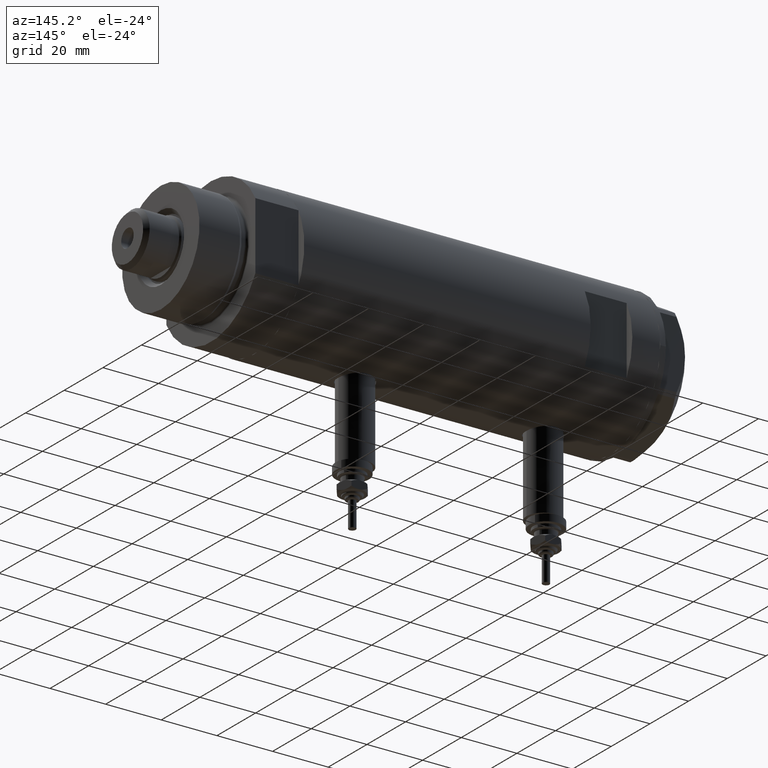
[diagram: clean part render]
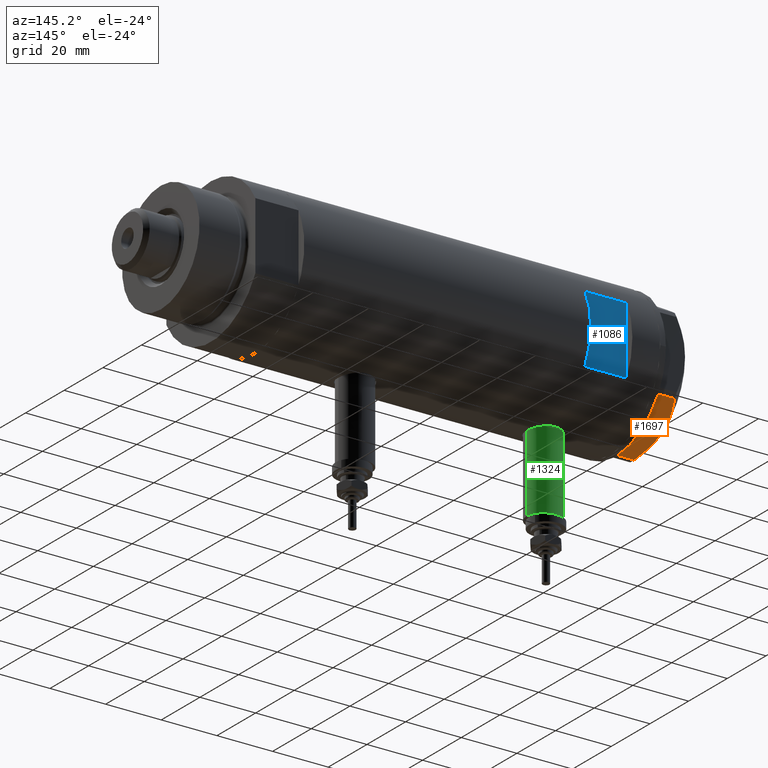
[diagram: same view with three faces highlighted in distinct colors, each labeled with its STEP entity id]
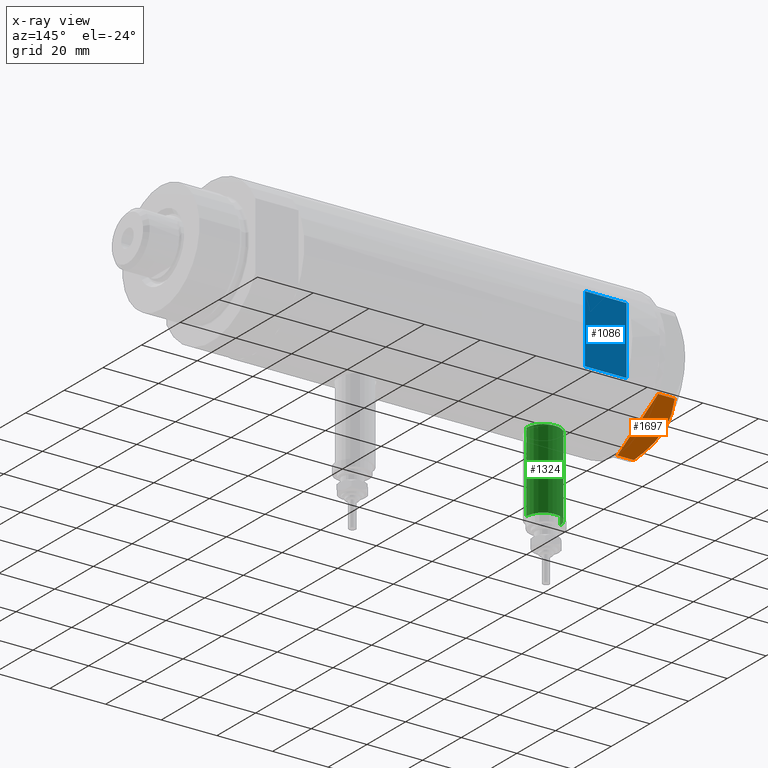
[diagram: x-ray of the same camera — body ghosted, the three highlighted faces saturated]
A machine part, auxiliary view with three faces highlighted in distinct colors.
The next image is the same camera in x-ray (body ghosted, the three faces saturated) — at least one of them is partly hidden behind the body in this view.
Their STEP definitions:

[orange] entity #1697 — the highlighted planar face has unit normal (0, -0.5, 0.866).
#93 = CARTESIAN_POINT ( 'NONE',  ( 22.03005154776138852, 13.83905619136154819, 5.983800287807532037 ) ) ;
#448 = DIRECTION ( 'NONE',  ( -0.8660254037844415942, 0.4999999999999949485, 0.000000000000000000 ) ) ;
#458 = CARTESIAN_POINT ( 'NONE',  ( 15.16323225988329959, 17.80361615569442790, 8.637313967156861949 ) ) ;
#459 = CARTESIAN_POINT ( 'NONE',  ( 22.99999999999981171, 13.27905619136164184, 0.000000000000000000 ) ) ;
#599 = ORIENTED_EDGE ( 'NONE', *, *, #1972, .T. ) ;
#874 = EDGE_CURVE ( 'NONE', #1770, #4079, #2374, .T. ) ;
#1021 = CARTESIAN_POINT ( 'NONE',  ( 18.67981377008996446, 15.77331687414937278, 7.629374868826049649 ) ) ;
#1106 = CARTESIAN_POINT ( 'NONE',  ( 0.9999999999999297229, 25.98076211353316722, 0.000000000000000000 ) ) ;
#1217 = ORIENTED_EDGE ( 'NONE', *, *, #1608, .T. ) ;
#1262 = ORIENTED_EDGE ( 'NONE', *, *, #2568, .T. ) ;
#1413 = CARTESIAN_POINT ( 'NONE',  ( 1.799196345396824492, 25.51934588838292228, 6.431317509509382191 ) ) ;
#1447 = VECTOR ( 'NONE', #1647, 1000.000000000000000 ) ;
#1463 = ORIENTED_EDGE ( 'NONE', *, *, #3302, .T. ) ;
#1483 = CARTESIAN_POINT ( 'NONE',  ( 13.34348161667005073, 18.85424967941157703, 8.907842277728345692 ) ) ;
#1501 = LINE ( 'NONE', #2521, #4923 ) ;
#1525 = CARTESIAN_POINT ( 'NONE',  ( 0.9699484522385767304, 25.99811238272274849, 5.983800287807627960 ) ) ;
#1608 = EDGE_CURVE ( 'NONE', #4596, #1933, #4842, .T. ) ;
#1647 = DIRECTION ( 'NONE',  ( 0.000000000000000000, 0.000000000000000000, 1.000000000000000000 ) ) ;
#1697 = ADVANCED_FACE ( 'NONE', ( #3997 ), #2008, .F. ) ;
#1770 = VERTEX_POINT ( 'NONE', #3474 ) ;
#1799 = CARTESIAN_POINT ( 'NONE',  ( 11.49999999999990408, 19.91858428704219364, 9.000000000000000000 ) ) ;
#1914 = DIRECTION ( 'NONE',  ( -0.8660254037844415942, 0.4999999999999949485, 0.000000000000000000 ) ) ;
#1933 = VERTEX_POINT ( 'NONE', #2229 ) ;
#1953 = ORIENTED_EDGE ( 'NONE', *, *, #4364, .F. ) ;
#1972 = EDGE_CURVE ( 'NONE', #1933, #5640, #4669, .T. ) ;
#2008 = PLANE ( 'NONE',  #2760 ) ;
#2042 = CARTESIAN_POINT ( 'NONE',  ( 13.80210138309697498, 18.58946543380931260, 8.852712638955710034 ) ) ;
#2062 = ORIENTED_EDGE ( 'NONE', *, *, #874, .T. ) ;
#2129 = EDGE_CURVE ( 'NONE', #2654, #2762, #3082, .T. ) ;
#2229 = CARTESIAN_POINT ( 'NONE',  ( 0.9699484522385816154, 25.99811238272274494, 0.000000000000000000 ) ) ;
#2374 = LINE ( 'NONE', #459, #3270 ) ;
#2521 = CARTESIAN_POINT ( 'NONE',  ( 22.99999999999981171, 13.27905619136164184, 0.000000000000000000 ) ) ;
#2568 = EDGE_CURVE ( 'NONE', #4079, #4596, #1501, .T. ) ;
#2627 = EDGE_LOOP ( 'NONE', ( #5172, #1463, #2062, #1262, #1217, #599, #1953 ) ) ;
#2654 = VERTEX_POINT ( 'NONE', #5017 ) ;
#2681 = B_SPLINE_CURVE_WITH_KNOTS ( 'NONE', 3,
 ( #1799, #3754, #3849, #5254, #2956, #3019, #5911, #6277, #1413, #1525 ),
 .UNSPECIFIED., .F., .F.,
 ( 4, 2, 2, 2, 4 ),
 ( 0.01376519981810293489, 0.01998941321701561136, 0.02154546656674377961, 0.02310151991647194786, 0.02621362661592828783 ),
 .UNSPECIFIED. ) ;
#2760 = AXIS2_PLACEMENT_3D ( 'NONE', #3965, #5889, #2930 ) ;
#2762 = VERTEX_POINT ( 'NONE', #5245 ) ;
#2827 = CARTESIAN_POINT ( 'NONE',  ( 22.03005154776124286, 13.83905619136163168, 9.000000000000000000 ) ) ;
#2930 = DIRECTION ( 'NONE',  ( 0.8660254037844415942, -0.4999999999999949485, 0.000000000000000000 ) ) ;
#2956 = CARTESIAN_POINT ( 'NONE',  ( 5.229981517798067081, 23.53858114556529912, 7.892128867758392730 ) ) ;
#3019 = CARTESIAN_POINT ( 'NONE',  ( 4.357207709416038632, 24.04247733877631532, 7.570552255229681116 ) ) ;
#3082 = B_SPLINE_CURVE_WITH_KNOTS ( 'NONE', 3,
 ( #93, #5955, #1021, #5830, #458, #2042, #1483, #4004, #5894, #5439 ),
 .UNSPECIFIED., .F., .F.,
 ( 4, 2, 2, 2, 4 ),
 ( 0.001228959670438493522, 0.007497079744270714746, 0.01063113978118682655, 0.01219816979964488159, 0.01376519981810293489 ),
 .UNSPECIFIED. ) ;
#3270 = VECTOR ( 'NONE', #4332, 999.9999999999998863 ) ;
#3302 = EDGE_CURVE ( 'NONE', #2654, #1770, #5723, .T. ) ;
#3474 = CARTESIAN_POINT ( 'NONE',  ( 22.03005154776124286, 13.83905619136163168, 0.000000000000000000 ) ) ;
#3754 = CARTESIAN_POINT ( 'NONE',  ( 9.678244919010086988, 20.97037507344920826, 9.000000000000001776 ) ) ;
#3849 = CARTESIAN_POINT ( 'NONE',  ( 7.884645426989626671, 22.00591022298560517, 8.707651728476925257 ) ) ;
#3965 = CARTESIAN_POINT ( 'NONE',  ( 22.99999999999981171, 13.27905619136164184, 9.000000000000000000 ) ) ;
#3997 = FACE_OUTER_BOUND ( 'NONE', #2627, .T. ) ;
#4004 = CARTESIAN_POINT ( 'NONE',  ( 12.41906678023027588, 19.38796083407295967, 8.981686407609410949 ) ) ;
#4079 = VERTEX_POINT ( 'NONE', #5925 ) ;
#4203 = CARTESIAN_POINT ( 'NONE',  ( 0.9699484522385767304, 25.99811238272274849, 5.983800287807627960 ) ) ;
#4332 = DIRECTION ( 'NONE',  ( -0.8660254037844415942, 0.4999999999999949485, 0.000000000000000000 ) ) ;
#4364 = EDGE_CURVE ( 'NONE', #2762, #5640, #2681, .T. ) ;
#4596 = VERTEX_POINT ( 'NONE', #1106 ) ;
#4669 = LINE ( 'NONE', #5045, #1447 ) ;
#4842 = LINE ( 'NONE', #5737, #4912 ) ;
#4912 = VECTOR ( 'NONE', #448, 999.9999999999998863 ) ;
#4923 = VECTOR ( 'NONE', #1914, 999.9999999999998863 ) ;
#5017 = CARTESIAN_POINT ( 'NONE',  ( 22.03005154776138852, 13.83905619136154819, 5.983800287807532037 ) ) ;
#5045 = CARTESIAN_POINT ( 'NONE',  ( 0.9699484522385816154, 25.99811238272274494, 9.000000000000000000 ) ) ;
#5172 = ORIENTED_EDGE ( 'NONE', *, *, #2129, .F. ) ;
#5245 = CARTESIAN_POINT ( 'NONE',  ( 11.49999999999990408, 19.91858428704219364, 9.000000000000000000 ) ) ;
#5254 = CARTESIAN_POINT ( 'NONE',  ( 5.671686373602799591, 23.28356272816407824, 8.040681765829278405 ) ) ;
#5439 = CARTESIAN_POINT ( 'NONE',  ( 11.49999999999990408, 19.91858428704219364, 9.000000000000000000 ) ) ;
#5640 = VERTEX_POINT ( 'NONE', #4203 ) ;
#5723 = LINE ( 'NONE', #2827, #6051 ) ;
#5737 = CARTESIAN_POINT ( 'NONE',  ( 22.99999999999981171, 13.27905619136164184, 0.000000000000000000 ) ) ;
#5830 = CARTESIAN_POINT ( 'NONE',  ( 16.05322244309623869, 17.28978008384030929, 8.426899937603700153 ) ) ;
#5889 = DIRECTION ( 'NONE',  ( -0.4999999999999949485, -0.8660254037844415942, 0.000000000000000000 ) ) ;
#5894 = CARTESIAN_POINT ( 'NONE',  ( 11.95865151389051917, 19.65378171203322566, 9.000000000000005329 ) ) ;
#5911 = CARTESIAN_POINT ( 'NONE',  ( 3.925137811030050994, 24.29193301091819635, 7.397272853991373687 ) ) ;
#5925 = CARTESIAN_POINT ( 'NONE',  ( 21.99999999999987210, 13.85640646055121827, 0.000000000000000000 ) ) ;
#5955 = CARTESIAN_POINT ( 'NONE',  ( 20.37350567916420019, 14.79546339452108050, 6.877782426143415506 ) ) ;
#6051 = VECTOR ( 'NONE', #6226, 1000.000000000000000 ) ;
#6226 = DIRECTION ( 'NONE',  ( 0.000000000000000000, 0.000000000000000000, -1.000000000000000000 ) ) ;
#6277 = CARTESIAN_POINT ( 'NONE',  ( 2.640413878806739945, 25.03366871902167290, 6.844201024438365089 ) ) ;

[blue] entity #1086 — the highlighted planar face has unit normal (0, -1, -0).
#94 = FACE_OUTER_BOUND ( 'NONE', #649, .T. ) ;
#371 = EDGE_CURVE ( 'NONE', #3092, #3557, #594, .T. ) ;
#557 = CARTESIAN_POINT ( 'NONE',  ( -12.12435565298214080, 23.00000000000000355, -63.95000000000000995 ) ) ;
#594 = LINE ( 'NONE', #3540, #1737 ) ;
#649 = EDGE_LOOP ( 'NONE', ( #3959, #3046, #4732, #1401 ) ) ;
#716 = VERTEX_POINT ( 'NONE', #3171 ) ;
#776 = DIRECTION ( 'NONE',  ( 0.000000000000000000, 0.000000000000000000, -1.000000000000000000 ) ) ;
#1063 = CARTESIAN_POINT ( 'NONE',  ( -26.00000000000000355, 23.00000000000000355, 53.94999999999999574 ) ) ;
#1086 = ADVANCED_FACE ( 'NONE', ( #94 ), #4042, .F. ) ;
#1162 = VECTOR ( 'NONE', #3401, 1000.000000000000000 ) ;
#1358 = EDGE_CURVE ( 'NONE', #716, #3557, #5899, .T. ) ;
#1401 = ORIENTED_EDGE ( 'NONE', *, *, #4133, .T. ) ;
#1470 = CARTESIAN_POINT ( 'NONE',  ( 12.12435565298214080, 23.00000000000000355, 53.94999999999999574 ) ) ;
#1737 = VECTOR ( 'NONE', #2641, 1000.000000000000000 ) ;
#2066 = VECTOR ( 'NONE', #5508, 1000.000000000000000 ) ;
#2114 = DIRECTION ( 'NONE',  ( 0.000000000000000000, -1.000000000000000000, -0.000000000000000000 ) ) ;
#2641 = DIRECTION ( 'NONE',  ( -0.000000000000000000, -0.000000000000000000, -1.000000000000000000 ) ) ;
#2885 = DIRECTION ( 'NONE',  ( 1.000000000000000000, -0.000000000000000000, -0.000000000000000000 ) ) ;
#2947 = LINE ( 'NONE', #557, #1162 ) ;
#3046 = ORIENTED_EDGE ( 'NONE', *, *, #1358, .F. ) ;
#3092 = VERTEX_POINT ( 'NONE', #1470 ) ;
#3143 = CARTESIAN_POINT ( 'NONE',  ( 12.12435565298213724, 23.00000000000000355, 38.94999999999999574 ) ) ;
#3171 = CARTESIAN_POINT ( 'NONE',  ( -12.12435565298214080, 23.00000000000000355, 38.94999999999999574 ) ) ;
#3401 = DIRECTION ( 'NONE',  ( 0.000000000000000000, 0.000000000000000000, 1.000000000000000000 ) ) ;
#3540 = CARTESIAN_POINT ( 'NONE',  ( 12.12435565298214080, 23.00000000000000355, -63.95000000000000995 ) ) ;
#3557 = VERTEX_POINT ( 'NONE', #3143 ) ;
#3850 = CARTESIAN_POINT ( 'NONE',  ( -12.12435565298214080, 23.00000000000000355, 53.94999999999999574 ) ) ;
#3959 = ORIENTED_EDGE ( 'NONE', *, *, #371, .T. ) ;
#4005 = CARTESIAN_POINT ( 'NONE',  ( -26.00000000000000355, 23.00000000000000355, 53.94999999999999574 ) ) ;
#4042 = PLANE ( 'NONE',  #4906 ) ;
#4133 = EDGE_CURVE ( 'NONE', #5908, #3092, #5443, .T. ) ;
#4393 = VECTOR ( 'NONE', #2885, 1000.000000000000000 ) ;
#4732 = ORIENTED_EDGE ( 'NONE', *, *, #4848, .T. ) ;
#4848 = EDGE_CURVE ( 'NONE', #716, #5908, #2947, .T. ) ;
#4906 = AXIS2_PLACEMENT_3D ( 'NONE', #4005, #2114, #776 ) ;
#5443 = LINE ( 'NONE', #1063, #2066 ) ;
#5508 = DIRECTION ( 'NONE',  ( 1.000000000000000000, -0.000000000000000000, -0.000000000000000000 ) ) ;
#5899 = LINE ( 'NONE', #6019, #4393 ) ;
#5908 = VERTEX_POINT ( 'NONE', #3850 ) ;
#6019 = CARTESIAN_POINT ( 'NONE',  ( -26.00000000000000355, 23.00000000000000355, 38.94999999999999574 ) ) ;

[green] entity #1324 — the highlighted cylindrical surface (edge-blend (fillet) strip) has radius 6 mm, axis along (0, 0, 1).
#221 = ORIENTED_EDGE ( 'NONE', *, *, #4518, .F. ) ;
#967 = CARTESIAN_POINT ( 'NONE',  ( -53.40000000000000568, 0.000000000000000000, 33.95000000000000995 ) ) ;
#1054 = AXIS2_PLACEMENT_3D ( 'NONE', #5493, #5013, #4576 ) ;
#1163 = ORIENTED_EDGE ( 'NONE', *, *, #3702, .T. ) ;
#1324 = ADVANCED_FACE ( 'NONE', ( #1512 ), #5351, .T. ) ;
#1359 = CARTESIAN_POINT ( 'NONE',  ( -24.80000000000000426, 0.000000000000000000, 39.95000000000000284 ) ) ;
#1489 = CARTESIAN_POINT ( 'NONE',  ( -53.40000000000000568, 0.000000000000000000, 39.95000000000000284 ) ) ;
#1512 = FACE_OUTER_BOUND ( 'NONE', #5486, .T. ) ;
#1638 = VERTEX_POINT ( 'NONE', #5497 ) ;
#1985 = EDGE_CURVE ( 'NONE', #4268, #2743, #3600, .T. ) ;
#2172 = EDGE_CURVE ( 'NONE', #1638, #4379, #3030, .T. ) ;
#2179 = CIRCLE ( 'NONE', #1054, 5.999999999999998224 ) ;
#2192 = CARTESIAN_POINT ( 'NONE',  ( -53.40000000000000568, 7.347880794884112834E-16, 45.95000000000000284 ) ) ;
#2384 = ORIENTED_EDGE ( 'NONE', *, *, #1985, .T. ) ;
#2592 = DIRECTION ( 'NONE',  ( 0.000000000000000000, 0.000000000000000000, -1.000000000000000000 ) ) ;
#2743 = VERTEX_POINT ( 'NONE', #3541 ) ;
#2785 = CIRCLE ( 'NONE', #5646, 5.999999999999998224 ) ;
#3030 = LINE ( 'NONE', #967, #3380 ) ;
#3243 = DIRECTION ( 'NONE',  ( -1.000000000000000000, 0.000000000000000000, 0.000000000000000000 ) ) ;
#3380 = VECTOR ( 'NONE', #4362, 1000.000000000000000 ) ;
#3541 = CARTESIAN_POINT ( 'NONE',  ( -24.80000000000000426, 7.347880794884108889E-16, 45.95000000000000284 ) ) ;
#3569 = AXIS2_PLACEMENT_3D ( 'NONE', #1489, #3950, #2592 ) ;
#3600 = LINE ( 'NONE', #2192, #5636 ) ;
#3702 = EDGE_CURVE ( 'NONE', #2743, #4379, #2785, .T. ) ;
#3950 = DIRECTION ( 'NONE',  ( 1.000000000000000000, -0.000000000000000000, -0.000000000000000000 ) ) ;
#4268 = VERTEX_POINT ( 'NONE', #5164 ) ;
#4362 = DIRECTION ( 'NONE',  ( 1.000000000000000000, -0.000000000000000000, -0.000000000000000000 ) ) ;
#4379 = VERTEX_POINT ( 'NONE', #5943 ) ;
#4518 = EDGE_CURVE ( 'NONE', #4268, #1638, #2179, .T. ) ;
#4576 = DIRECTION ( 'NONE',  ( 0.000000000000000000, 0.000000000000000000, 1.000000000000000000 ) ) ;
#5013 = DIRECTION ( 'NONE',  ( -1.000000000000000000, 0.000000000000000000, 0.000000000000000000 ) ) ;
#5136 = ORIENTED_EDGE ( 'NONE', *, *, #2172, .F. ) ;
#5164 = CARTESIAN_POINT ( 'NONE',  ( -53.40000000000000568, 7.347880794884108889E-16, 45.95000000000000284 ) ) ;
#5351 = CYLINDRICAL_SURFACE ( 'NONE', #3569, 5.999999999999998224 ) ;
#5486 = EDGE_LOOP ( 'NONE', ( #221, #2384, #1163, #5136 ) ) ;
#5493 = CARTESIAN_POINT ( 'NONE',  ( -53.40000000000000568, 0.000000000000000000, 39.95000000000000284 ) ) ;
#5497 = CARTESIAN_POINT ( 'NONE',  ( -53.40000000000000568, 0.000000000000000000, 33.95000000000000995 ) ) ;
#5636 = VECTOR ( 'NONE', #6068, 1000.000000000000000 ) ;
#5646 = AXIS2_PLACEMENT_3D ( 'NONE', #1359, #3243, #6221 ) ;
#5943 = CARTESIAN_POINT ( 'NONE',  ( -24.80000000000000426, 0.000000000000000000, 33.95000000000000995 ) ) ;
#6068 = DIRECTION ( 'NONE',  ( 1.000000000000000000, -0.000000000000000000, -0.000000000000000000 ) ) ;
#6221 = DIRECTION ( 'NONE',  ( 0.000000000000000000, 0.000000000000000000, 1.000000000000000000 ) ) ;